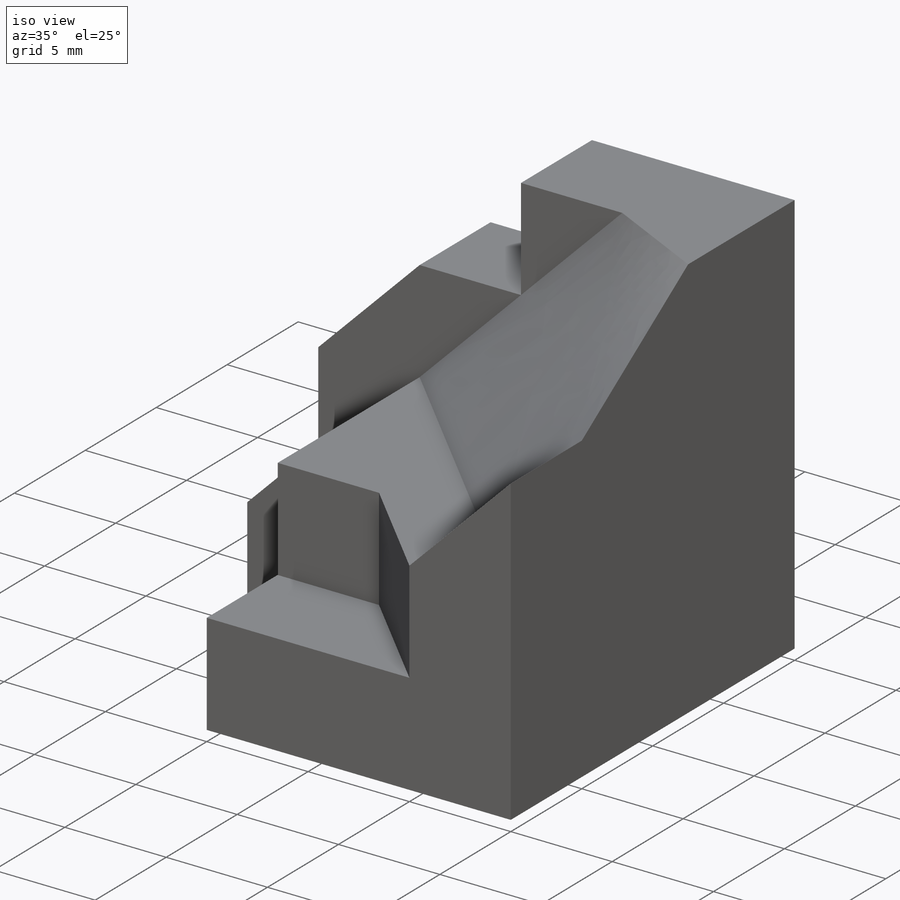
[diagram: iso view]
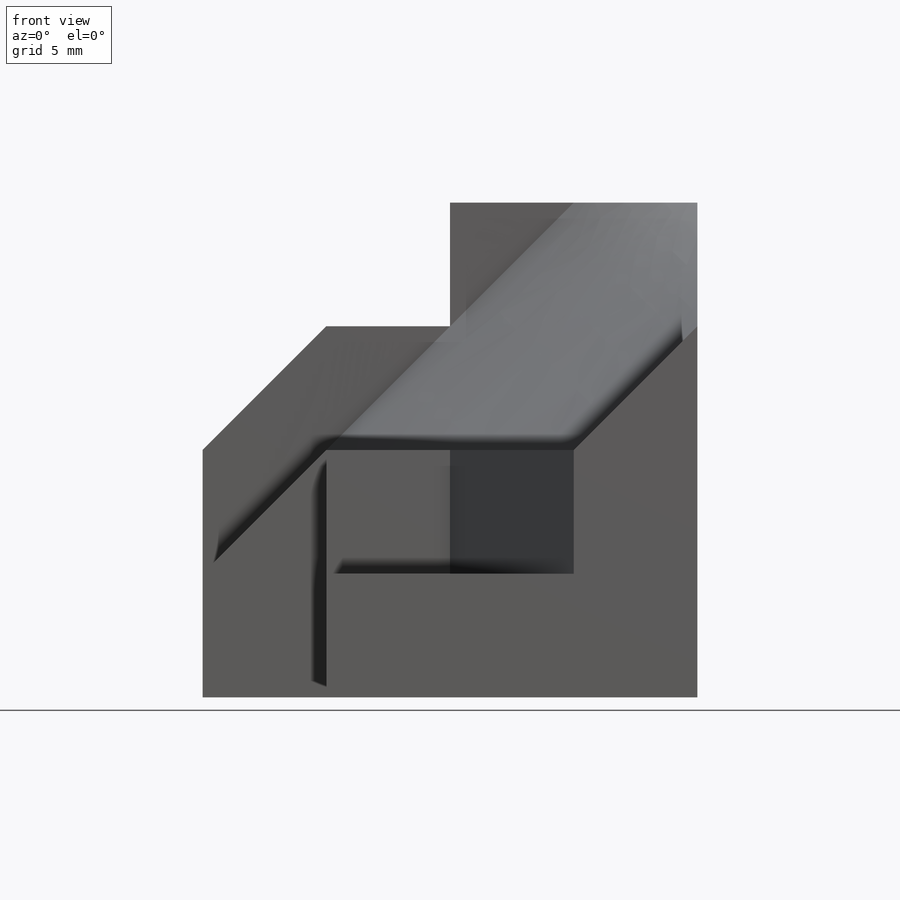
[diagram: front view]
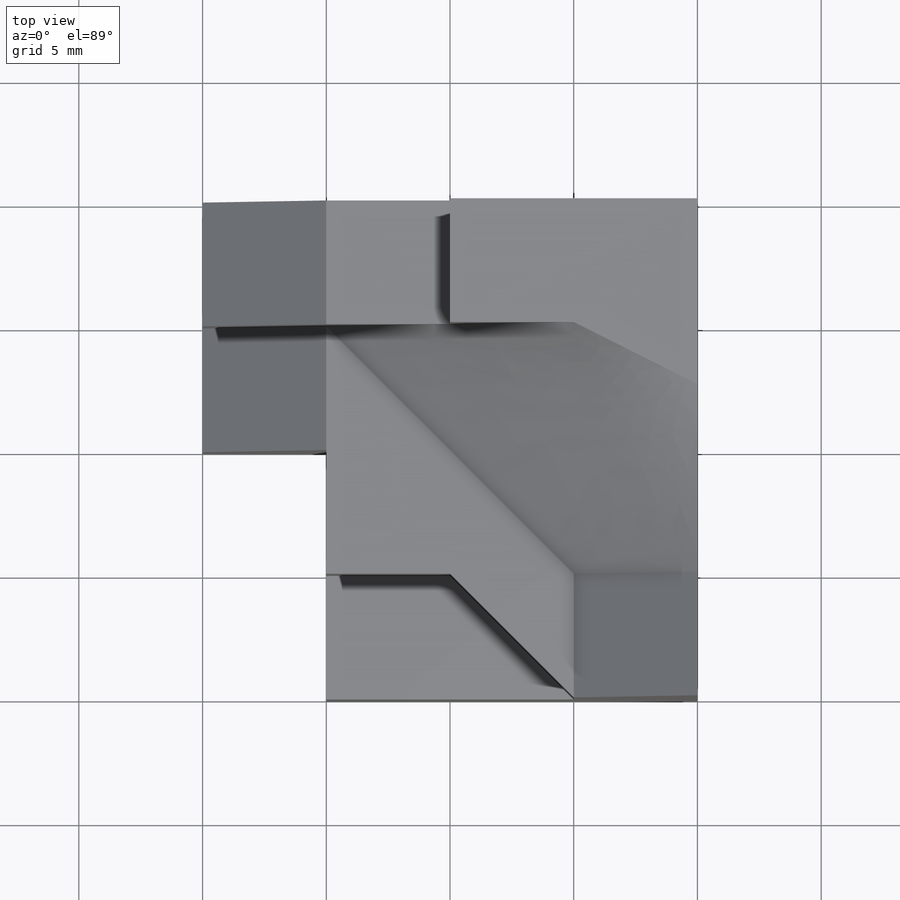
[diagram: top view]
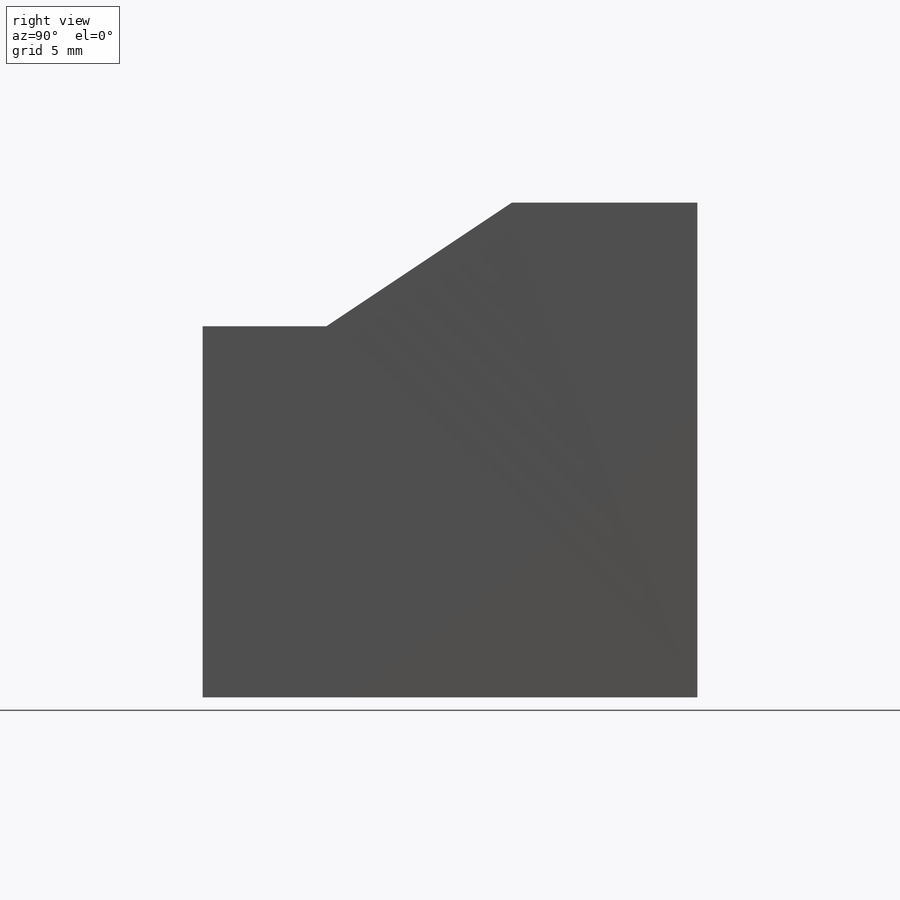
[diagram: right view]
SOLIDWORKS PART (.sldprt)
format: sldprt  version: not decoded by parser v0  size: 275,456 bytes
history: native  units: mm
features: sketch x10, extrude x7, cut_extrude x3, material x1, plane x1 (+13 scaffold rows collapsed)
feature tree (35):
  scaffold x13  (default folders/planes/origin — collapsed)
  material  "Material <not specified>"
  sketch  "Sketch1"  dims[D1=10.0mm D2=10.0mm D3=5.0mm D4=5.0mm]
  extrude  "Boss-Extrude1"  Depth=20mm
  sketch  "Sketch2"  dims[D1=15.0mm]
  extrude  "Boss-Extrude2"  Depth=10mm
  sketch  "Sketch3"  dims[D1=5.0mm D2=5.0mm]
  cut_extrude  "Cut-Extrude1"  Depth=10mm
  sketch  "Sketch4"  dims[D1=5.0mm D2=10.0mm]
  extrude  "Boss-Extrude3"  Depth=5mm
  sketch  "Sketch5"  dims[D1=5.0mm]
  cut_extrude  "Cut-Extrude2"  Depth=5mm
  plane  "Plane1"
  sketch  "Sketch6"  dims[D1=5.0mm]
  extrude  "Boss-Extrude9"  Depth=20mm
  sketch  "3DSketch4"  dims[D1=5.0mm D2=5.0mm D3=10.0mm D4=10.0mm D5=5.0mm D6=10.0mm]
  cut_extrude  "Cut-Extrude20"  Depth=28mm
  sketch  "Sketch7"  dims[D1=5.0mm]
  extrude  "Boss-Extrude10"  Depth=5mm
  sketch  "Sketch8"
  extrude  "Boss-Extrude11"  Depth=5mm
  sketch  "Sketch9"  dims[D1=5.0mm]
  extrude  "Boss-Extrude12"  Depth=5mm
decode coverage: 19 of 20 modeling features carry decoded parameters
note: suppression state not decoded; provenance and decode notes live in map.json
